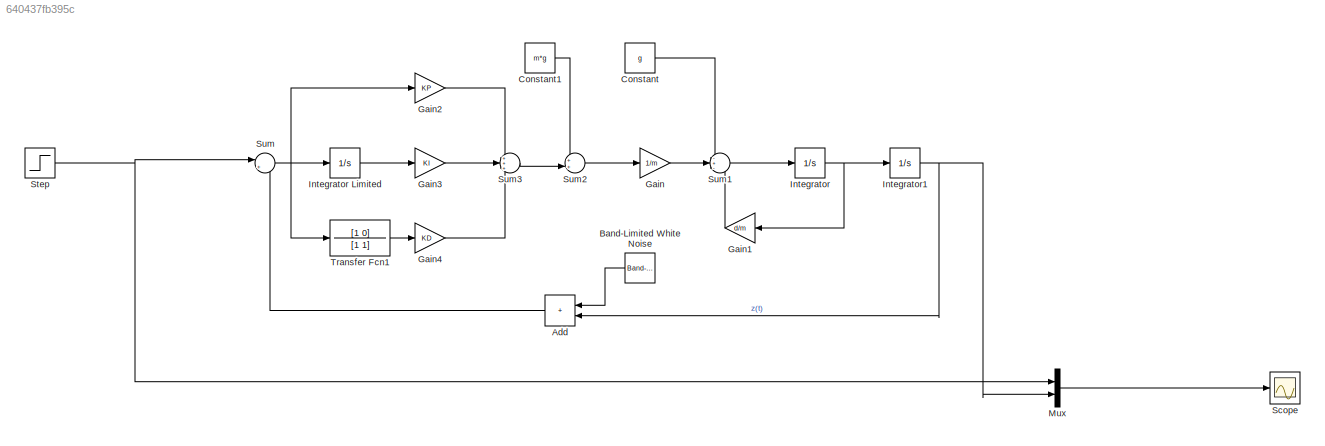
MODEL slx_640437fb395c
KIND model
CONFIG AbsTol = auto
CONFIG EnableMultiTasking = off
CONFIG FixedStep = auto
CONFIG MaxStep = auto
CONFIG MinStep = auto
CONFIG RelTol = 1e-3
CONFIG SampleTimeConstraint = Unconstrained
CONFIG SolverName = VariableStepAuto
CONFIG StartTime = 0.0
CONFIG StopTime = 1000
BLOCK [Sum] Add
  IconShape = rectangular
BLOCK [Reference] Band-Limited White Noise  REF=simulink/Sources/Band-Limited
White Noise
  NameLocation = top
  SourceBlock = simulink/Sources/Band-Limited\nWhite Noise
  SourceType = Band-Limited White Noise.
BLOCK [Constant] Constant
  Value = g
BLOCK [Constant] Constant1
  Value = m*g
BLOCK [Gain] Gain
  Gain = 1/m
BLOCK [Gain] Gain1
  Gain = d/m
  NameLocation = top
BLOCK [Gain] Gain2
  Gain = KP
BLOCK [Gain] Gain3
  Gain = KI
BLOCK [Gain] Gain4
  Gain = KD
BLOCK [Integrator] Integrator
BLOCK [Integrator] Integrator Limited
  LimitOutput = on
  LowerSaturationLimit = 0
  UpperSaturationLimit = 15
BLOCK [Integrator] Integrator1
BLOCK [Mux] Mux
  DisplayOption = bar
  Inputs = 2
BLOCK [Scope] Scope
  Floating = off
  NumInputPorts = 1
  ScopeSpecificationString = Simulink.scopes.TimeScopeBlockCfg('CurrentConfiguration', extmgr.ConfigurationSet(extmgr.Configuration('Core','General UI',true),extmgr.Configuration('Core','Source UI',true),extmgr.Configuration('Sources','WiredSimulink',true),extmgr.Configuration('Visuals','Time Domain',true,'SerializedDisplays',{struct('MinYLimReal','-6.30223','MaxYLimReal','56.64318','YLabelReal','','MinYLimMag','0.00000','Max...<+1435ch>
BLOCK [Step] Step
  After = 50
  SampleTime = 0
BLOCK [Sum] Sum
  Inputs = |+-
BLOCK [Sum] Sum1
  Inputs = -+-
BLOCK [Sum] Sum2
  Inputs = ++|
BLOCK [Sum] Sum3
  Inputs = +++
BLOCK [TransferFcn] Transfer Fcn1
  Denominator = [1 1]
  Numerator = [1 0]
LINE Add:1 -> Sum:2
LINE Band-Limited White Noise:1 -> Add:1
LINE Constant1:1 -> Sum2:1
LINE Constant:1 -> Sum1:1
LINE Gain1:1 -> Sum1:3
LINE Gain2:1 -> Sum3:1
LINE Gain3:1 -> Sum3:2
LINE Gain4:1 -> Sum3:3
LINE Gain:1 -> Sum1:2
LINE Integrator Limited:1 -> Gain3:1
NET Integrator1:1 -> Add:2, Mux:2
NET Integrator:1 -> Gain1:1, Integrator1:1
LINE Mux:1 -> Scope:1
NET Step:1 -> Mux:1, Sum:1
LINE Sum1:1 -> Integrator:1
LINE Sum2:1 -> Gain:1
LINE Sum3:1 -> Sum2:2
NET Sum:1 -> Gain2:1, Integrator Limited:1, Transfer Fcn1:1
LINE Transfer Fcn1:1 -> Gain4:1
note: NET lines group one-source signal fan-out (src -> all destinations, sorted); 1:1 wires keep LINE
